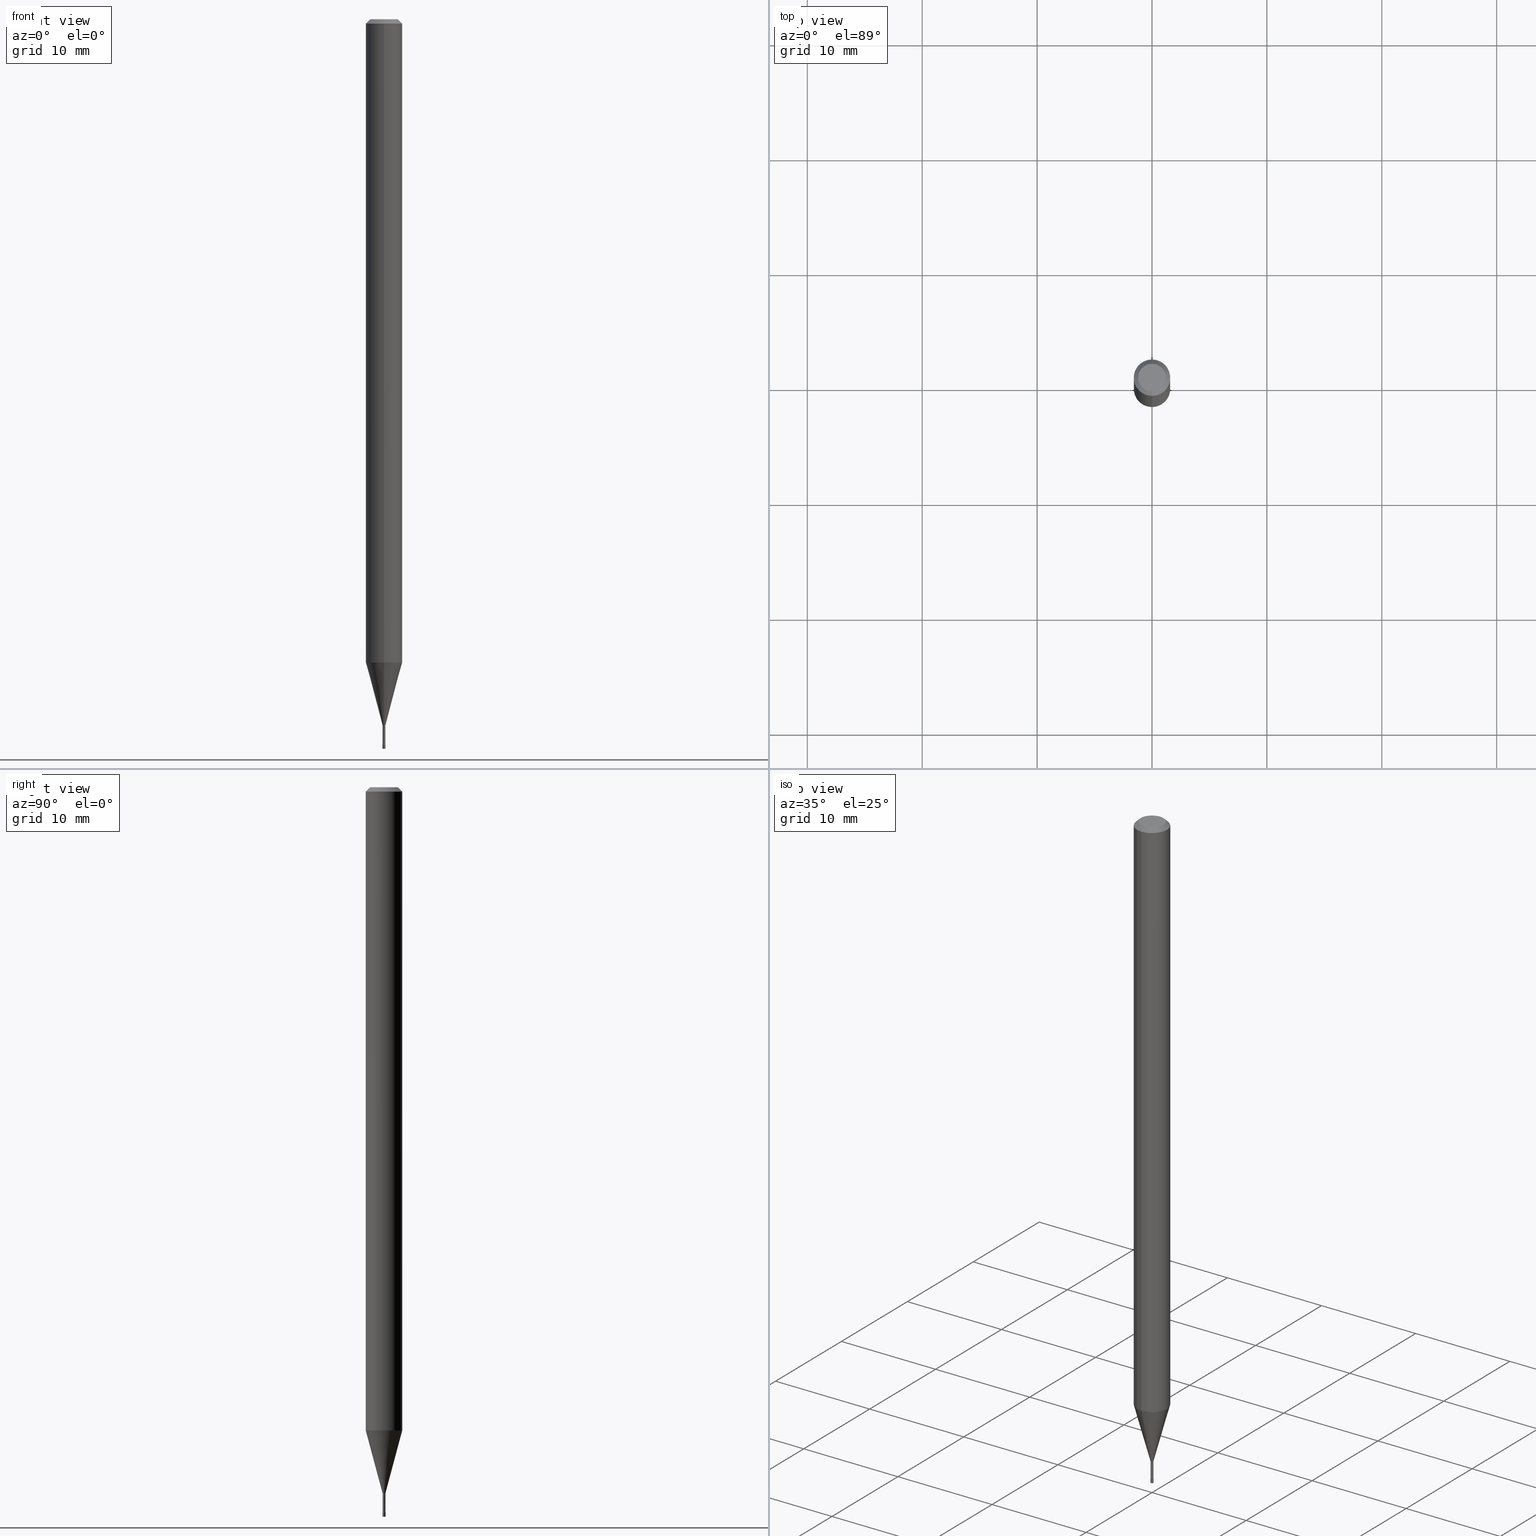
[diagram: canonical four-view strip — front | top / right | iso, engineering-drawing reading convention]
A machine part, canonical four-view strip (front | top / right | iso — engineering-drawing reading convention). The complete STEP part file that produces these views, byte-faithful:
ISO-10303-21;
HEADER;
FILE_DESCRIPTION (( 'STEP AP203' ),
    '1' );
FILE_NAME ('03562.STEP',
    '2024-03-08T21:50:03',
    ( '' ),
    ( '' ),
    'SwSTEP 2.0',
    'SolidWorks 2023',
    '' );
FILE_SCHEMA (( 'CONFIG_CONTROL_DESIGN' ));
ENDSEC;

DATA;
#1 = ORIENTED_EDGE ( 'NONE', *, *, #5, .T. ) ;
#2 = CIRCLE ( 'NONE', #202, 0.004700000000000001052 ) ;
#3 = CALENDAR_DATE ( 2024, 8, 3 ) ;
#4 = ORIENTED_EDGE ( 'NONE', *, *, #455, .T. ) ;
#5 = EDGE_CURVE ( 'NONE', #251, #259, #195, .T. ) ;
#6 = DIRECTION ( 'NONE',  ( -6.982962677686265922E-15, -1.000000000000000000, 3.490454887587355751E-15 ) ) ;
#7 = ORIENTED_EDGE ( 'NONE', *, *, #209, .T. ) ;
#8 = CARTESIAN_POINT ( 'NONE',  ( -3.281992458506474507E-17, -0.004700000000008664261, -2.482015037688680259 ) ) ;
#9 = EDGE_LOOP ( 'NONE', ( #174, #160, #13, #383 ) ) ;
#10 = DIRECTION ( 'NONE',  ( -6.982962677686265922E-15, -1.000000000000000000, 3.490454887587355751E-15 ) ) ;
#11 = AXIS2_PLACEMENT_3D ( 'NONE', #363, #51, #6 ) ;
#12 = PRODUCT_DEFINITION_FORMATION_WITH_SPECIFIED_SOURCE ( 'ANY', '', #357, .NOT_KNOWN. ) ;
#13 = ORIENTED_EDGE ( 'NONE', *, *, #477, .F. ) ;
#14 = CARTESIAN_POINT ( 'NONE',  ( 5.915102992694962294E-29, -8.440242791501723298E-15, -2.418092501787273196 ) ) ;
#15 = ORIENTED_EDGE ( 'NONE', *, *, #395, .F. ) ;
#16 = ADVANCED_FACE ( 'NONE', ( #483 ), #109, .F. ) ;
#17 = CARTESIAN_POINT ( 'NONE',  ( 6.076989983370064174E-29, -8.676331127025216680E-15, -2.484999999999999876 ) ) ;
#18 = VERTEX_POINT ( 'NONE', #283 ) ;
#19 = FACE_OUTER_BOUND ( 'NONE', #417, .T. ) ;
#20 = CIRCLE ( 'NONE', #146, 0.004700000000000001052 ) ;
#21 = ORIENTED_EDGE ( 'NONE', *, *, #266, .T. ) ;
#22 = CIRCLE ( 'NONE', #123, 0.06250000000000000000 ) ;
#23 = ORIENTED_EDGE ( 'NONE', *, *, #254, .F. ) ;
#24 = CARTESIAN_POINT ( 'NONE',  ( -1.375643647503587186E-16, -0.01970000000000866197, -2.482015037688680259 ) ) ;
#25 = VERTEX_POINT ( 'NONE', #8 ) ;
#26 = ORIENTED_EDGE ( 'NONE', *, *, #98, .F. ) ;
#27 = FACE_OUTER_BOUND ( 'NONE', #227, .T. ) ;
#28 = DIRECTION ( 'NONE',  ( -6.982962677686265133E-15, -1.000000000000000000, 0.000000000000000000 ) ) ;
#29 = ADVANCED_FACE ( 'NONE', ( #488 ), #293, .F. ) ;
#30 = CARTESIAN_POINT ( 'NONE',  ( -3.638900483451289349E-17, -0.005211112605672425790, -2.418092501787273196 ) ) ;
#31 = VECTOR ( 'NONE', #286, 39.37007874015748143 ) ;
#32 = EDGE_CURVE ( 'NONE', #292, #67, #332, .T. ) ;
#33 = CARTESIAN_POINT ( 'NONE',  ( 6.072671037490854444E-29, -8.661640674327993008E-15, -2.482015037688680259 ) ) ;
#34 = AXIS2_PLACEMENT_3D ( 'NONE', #17, #172, #406 ) ;
#35 = CIRCLE ( 'NONE', #288, 0.004999999999999997502 ) ;
#36 = APPROVAL_DATE_TIME ( #343, #117 ) ;
#37 = CARTESIAN_POINT ( 'NONE',  ( 3.702718207188347012E-17, 0.005211112605655546064, -2.418092501787273196 ) ) ;
#38 = DIRECTION ( 'NONE',  ( -6.982962677686265922E-15, -1.000000000000000000, 0.000000000000000000 ) ) ;
#39 = ADVANCED_FACE ( 'NONE', ( #170 ), #331, .F. ) ;
#40 = LINE ( 'NONE', #516, #492 ) ;
#41 = VECTOR ( 'NONE', #215, 39.37007874015748143 ) ;
#42 = CARTESIAN_POINT ( 'NONE',  ( 3.669278359899158842E-31, -5.235682331381043783E-17, -0.01500000000000003067 ) ) ;
#43 = VERTEX_POINT ( 'NONE', #161 ) ;
#44 = FACE_OUTER_BOUND ( 'NONE', #509, .T. ) ;
#45 = DIRECTION ( 'NONE',  ( 2.446185573266101259E-29, -3.490454887587355356E-15, -1.000000000000000000 ) ) ;
#46 = CARTESIAN_POINT ( 'NONE',  ( 0.004999999999999997502, -8.711245940413648329E-15, -2.484999999999999876 ) ) ;
#47 = EDGE_CURVE ( 'NONE', #294, #67, #413, .T. ) ;
#48 = APPLICATION_PROTOCOL_DEFINITION ( 'international standard', 'config_control_design', 1994, #54 ) ;
#49 = ORIENTED_EDGE ( 'NONE', *, *, #277, .T. ) ;
#50 = VECTOR ( 'NONE', #113, 39.37007874015748143 ) ;
#51 = DIRECTION ( 'NONE',  ( -2.446185573266101259E-29, 3.490454887587355356E-15, 1.000000000000000000 ) ) ;
#52 = ORIENTED_EDGE ( 'NONE', *, *, #484, .T. ) ;
#53 = CARTESIAN_POINT ( 'NONE',  ( 3.316907271900976096E-16, 0.04749999999999999362, -1.802779408416588912E-16 ) ) ;
#54 = APPLICATION_CONTEXT ( 'configuration controlled 3d designs of mechanical parts and assemblies' ) ;
#55 = ORIENTED_EDGE ( 'NONE', *, *, #426, .T. ) ;
#56 = DIRECTION ( 'NONE',  ( 1.000000000000000000, -6.982962677686266711E-15, 4.876176775795936914E-29 ) ) ;
#57 = ORIENTED_EDGE ( 'NONE', *, *, #273, .F. ) ;
#58 = EDGE_CURVE ( 'NONE', #259, #124, #101, .T. ) ;
#59 = AXIS2_PLACEMENT_3D ( 'NONE', #53, #125, #252 ) ;
#60 = AXIS2_PLACEMENT_3D ( 'NONE', #305, #466, #107 ) ;
#61 = DIRECTION ( 'NONE',  ( 7.105427357601001859E-15, 1.000000000000000000, 0.000000000000000000 ) ) ;
#62 = ORIENTED_EDGE ( 'NONE', *, *, #465, .T. ) ;
#63 = ORIENTED_EDGE ( 'NONE', *, *, #32, .T. ) ;
#64 = PRODUCT_RELATED_PRODUCT_CATEGORY ( 'detail', '', ( #357 ) ) ;
#65 = COORDINATED_UNIVERSAL_TIME_OFFSET ( 5, 0, .BEHIND. ) ;
#66 = CARTESIAN_POINT ( 'NONE',  ( 6.071469377823568273E-29, -8.663361519365767022E-15, -2.482015037688680259 ) ) ;
#67 = VERTEX_POINT ( 'NONE', #409 ) ;
#68 = DIRECTION ( 'NONE',  ( -6.982962677686265922E-15, -1.000000000000000000, 3.483106191921935554E-15 ) ) ;
#69 = AXIS2_PLACEMENT_3D ( 'NONE', #382, #115, #68 ) ;
#70 = FACE_OUTER_BOUND ( 'NONE', #350, .T. ) ;
#71 = CARTESIAN_POINT ( 'NONE',  ( 3.491481338849245302E-17, 0.004999999999991268373, -2.500000000000000000 ) ) ;
#72 = ORIENTED_EDGE ( 'NONE', *, *, #238, .T. ) ;
#73 = CARTESIAN_POINT ( 'NONE',  ( 2.405581959610001541E-16, 0.005211112605655546064, -2.418092501787273196 ) ) ;
#74 = PLANE ( 'NONE',  #407 ) ;
#75 = ADVANCED_FACE ( 'NONE', ( #255 ), #444, .T. ) ;
#76 = DATE_TIME_ROLE ( 'creation_date' ) ;
#77 = DIRECTION ( 'NONE',  ( -2.446185573266101259E-29, 3.490454887587355356E-15, 1.000000000000000000 ) ) ;
#78 = AXIS2_PLACEMENT_3D ( 'NONE', #471, #233, #267 ) ;
#79 = CIRCLE ( 'NONE', #474, 0.004699999999999992378 ) ;
#80 = CARTESIAN_POINT ( 'NONE',  ( -4.364351673553912750E-16, -0.06250000000000005551, -0.01499999999999981209 ) ) ;
#81 = ADVANCED_FACE ( 'NONE', ( #208 ), #256, .F. ) ;
#82 = DIRECTION ( 'NONE',  ( -2.446185573266101259E-29, 3.490454887587355356E-15, 1.000000000000000000 ) ) ;
#83 = EDGE_CURVE ( 'NONE', #182, #464, #411, .T. ) ;
#84 = TOROIDAL_SURFACE ( 'NONE', #91, 0.01970000000000000223, 0.01500000000000000291 ) ;
#85 = SECURITY_CLASSIFICATION ( '', '', #224 ) ;
#86 = CC_DESIGN_PERSON_AND_ORGANIZATION_ASSIGNMENT ( #187, #148, ( #85 ) ) ;
#87 = DIRECTION ( 'NONE',  ( -2.446185573266101259E-29, 3.490454887587355356E-15, 1.000000000000000000 ) ) ;
#88 = ADVANCED_FACE ( 'NONE', ( #446 ), #265, .F. ) ;
#89 = APPROVAL_DATE_TIME ( #284, #429 ) ;
#90 = ORIENTED_EDGE ( 'NONE', *, *, #387, .F. ) ;
#91 = AXIS2_PLACEMENT_3D ( 'NONE', #33, #374, #223 ) ;
#92 = CC_DESIGN_SECURITY_CLASSIFICATION ( #85, ( #12 ) ) ;
#93 = DIRECTION ( 'NONE',  ( -6.982962677686265922E-15, -1.000000000000000000, 0.000000000000000000 ) ) ;
#94 = EDGE_CURVE ( 'NONE', #427, #244, #127, .T. ) ;
#95 = EDGE_CURVE ( 'NONE', #419, #163, #178, .T. ) ;
#96 = CARTESIAN_POINT ( 'NONE',  ( -3.491481338837049389E-17, -0.005000000000008665915, -2.484999999999999876 ) ) ;
#97 = ORIENTED_EDGE ( 'NONE', *, *, #238, .F. ) ;
#98 = EDGE_CURVE ( 'NONE', #486, #292, #480, .T. ) ;
#99 = CARTESIAN_POINT ( 'NONE',  ( 3.491481338849208940E-17, 0.004999999999991321283, -2.484999999999999876 ) ) ;
#100 = ORIENTED_EDGE ( 'NONE', *, *, #32, .F. ) ;
#101 = CIRCLE ( 'NONE', #298, 0.004999999999999995767 ) ;
#102 = CARTESIAN_POINT ( 'NONE',  ( 0.004999999999999997502, -3.491481338843131630E-17, 2.438088387897967108E-31 ) ) ;
#103 = AXIS2_PLACEMENT_3D ( 'NONE', #14, #295, #93 ) ;
#104 = LINE ( 'NONE', #181, #50 ) ;
#105 = DIRECTION ( 'NONE',  ( 2.446185573266101259E-29, -3.490454887587355356E-15, -1.000000000000000000 ) ) ;
#106 = CARTESIAN_POINT ( 'NONE',  ( 6.076989983370064174E-29, -8.676331127025216680E-15, -2.484999999999999876 ) ) ;
#107 = DIRECTION ( 'NONE',  ( 7.105427357601000281E-15, 1.000000000000000000, 0.000000000000000000 ) ) ;
#108 = CARTESIAN_POINT ( 'NONE',  ( 0.000000000000000000, 0.000000000000000000, 0.000000000000000000 ) ) ;
#109 = TOROIDAL_SURFACE ( 'NONE', #397, 0.01969999999999999182, 0.01500000000000001506 ) ;
#110 = ORIENTED_EDGE ( 'NONE', *, *, #401, .F. ) ;
#111 = CC_DESIGN_APPROVAL ( #368, ( #12 ) ) ;
#112 = PERSON_AND_ORGANIZATION_ROLE ( 'creator' ) ;
#113 = DIRECTION ( 'NONE',  ( -4.851104656540964275E-15, -0.7071067811865500152, -0.7071067811865450192 ) ) ;
#114 = DATE_AND_TIME ( #271, #247 ) ;
#115 = DIRECTION ( 'NONE',  ( -2.446185573266101259E-29, 3.490454887587355356E-15, 1.000000000000000000 ) ) ;
#116 = CARTESIAN_POINT ( 'NONE',  ( 3.669278359899158842E-31, -5.235682331381043783E-17, -0.01500000000000003067 ) ) ;
#117 = APPROVAL ( #338, 'UNSPECIFIED' ) ;
#118 = EDGE_CURVE ( 'NONE', #464, #244, #157, .T. ) ;
#119 = LINE ( 'NONE', #236, #424 ) ;
#120 = CARTESIAN_POINT ( 'NONE',  ( 6.113672015462842613E-29, -8.728703347107864943E-15, -2.500000000000000000 ) ) ;
#121 = CARTESIAN_POINT ( 'NONE',  ( 3.669278359899158842E-31, -5.235682331381043783E-17, -0.01500000000000003067 ) ) ;
#122 = EDGE_CURVE ( 'NONE', #18, #43, #330, .T. ) ;
#123 = AXIS2_PLACEMENT_3D ( 'NONE', #121, #153, #396 ) ;
#124 = VERTEX_POINT ( 'NONE', #96 ) ;
#125 = DIRECTION ( 'NONE',  ( 2.446185573266101259E-29, -3.490454887587354962E-15, -1.000000000000000000 ) ) ;
#126 = CALENDAR_DATE ( 2024, 8, 3 ) ;
#127 = LINE ( 'NONE', #217, #41 ) ;
#128 = AXIS2_PLACEMENT_3D ( 'NONE', #106, #463, #261 ) ;
#129 = APPROVAL_PERSON_ORGANIZATION ( #326, #429, #404 ) ;
#130 = DIRECTION ( 'NONE',  ( -2.446185573266101259E-29, 3.490454887587355356E-15, 1.000000000000000000 ) ) ;
#131 = ORIENTED_EDGE ( 'NONE', *, *, #487, .F. ) ;
#132 = DIRECTION ( 'NONE',  ( -2.446185573266101259E-29, 3.490454887587355356E-15, 1.000000000000000000 ) ) ;
#133 = ORIENTED_EDGE ( 'NONE', *, *, #303, .F. ) ;
#134 = CARTESIAN_POINT ( 'NONE',  ( 0.000000000000000000, 0.000000000000000000, 0.000000000000000000 ) ) ;
#135 = EDGE_LOOP ( 'NONE', ( #334, #166, #26, #218 ) ) ;
#136 = CARTESIAN_POINT ( 'NONE',  ( -0.004999999999999997502, -8.666990100278535771E-15, -2.484999999999999876 ) ) ;
#137 = AXIS2_PLACEMENT_3D ( 'NONE', #450, #130, #211 ) ;
#138 = ORIENTED_EDGE ( 'NONE', *, *, #266, .F. ) ;
#139 = LINE ( 'NONE', #428, #517 ) ;
#140 = CARTESIAN_POINT ( 'NONE',  ( 3.840629472727447874E-16, 0.04749999999999999362, -1.947592745229184119E-16 ) ) ;
#141 = ORIENTED_EDGE ( 'NONE', *, *, #58, .F. ) ;
#142 = PERSON_AND_ORGANIZATION ( #297, #235 ) ;
#143 = FACE_OUTER_BOUND ( 'NONE', #229, .T. ) ;
#144 = ORIENTED_EDGE ( 'NONE', *, *, #207, .T. ) ;
#145 = DIRECTION ( 'NONE',  ( -1.000000000000000000, 6.982962677686265922E-15, -4.883557194083112340E-29 ) ) ;
#146 = AXIS2_PLACEMENT_3D ( 'NONE', #438, #356, #242 ) ;
#147 = CONICAL_SURFACE ( 'NONE', #459, 0.005211112605663986361, 0.2617993877991502960 ) ;
#148 = PERSON_AND_ORGANIZATION_ROLE ( 'classification_officer' ) ;
#149 = DIRECTION ( 'NONE',  ( -6.982962677686265922E-15, -1.000000000000000000, 3.490454887587355356E-15 ) ) ;
#150 = PERSON_AND_ORGANIZATION ( #297, #235 ) ;
#151 = CARTESIAN_POINT ( 'NONE',  ( 0.000000000000000000, 0.000000000000000000, 0.000000000000000000 ) ) ;
#152 = AXIS2_PLACEMENT_3D ( 'NONE', #134, #205, #56 ) ;
#153 = DIRECTION ( 'NONE',  ( -2.446185573266101259E-29, 3.490454887587355356E-15, 1.000000000000000000 ) ) ;
#154 = CC_DESIGN_PERSON_AND_ORGANIZATION_ASSIGNMENT ( #158, #243, ( #520 ) ) ;
#155 = DIRECTION ( 'NONE',  ( -2.445468806185136597E-29, 3.491481338843145583E-15, 1.000000000000000000 ) ) ;
#156 =( NAMED_UNIT ( * ) PLANE_ANGLE_UNIT ( ) SI_UNIT ( $, .RADIAN. ) );
#157 = CIRCLE ( 'NONE', #34, 0.004999999999999997502 ) ;
#158 = PERSON_AND_ORGANIZATION ( #297, #235 ) ;
#159 = ORIENTED_EDGE ( 'NONE', *, *, #345, .F. ) ;
#160 = ORIENTED_EDGE ( 'NONE', *, *, #395, .T. ) ;
#161 = CARTESIAN_POINT ( 'NONE',  ( -3.281992458506615023E-17, -0.004700000000008446553, -2.421974787463811118 ) ) ;
#162 = CC_DESIGN_PERSON_AND_ORGANIZATION_ASSIGNMENT ( #346, #112, ( #12 ) ) ;
#163 = VERTEX_POINT ( 'NONE', #290 ) ;
#164 = DIRECTION ( 'NONE',  ( -2.445468806185136877E-29, 3.491481338843145188E-15, 1.000000000000000000 ) ) ;
#165 = EDGE_CURVE ( 'NONE', #419, #292, #221, .T. ) ;
#166 = ORIENTED_EDGE ( 'NONE', *, *, #165, .T. ) ;
#167 = AXIS2_PLACEMENT_3D ( 'NONE', #24, #430, #372 ) ;
#168 = DIRECTION ( 'NONE',  ( -2.446185573266101259E-29, 3.490454887587354962E-15, 1.000000000000000000 ) ) ;
#169 = EDGE_LOOP ( 'NONE', ( #15, #268, #52, #405 ) ) ;
#170 = FACE_OUTER_BOUND ( 'NONE', #493, .T. ) ;
#171 = ORIENTED_EDGE ( 'NONE', *, *, #83, .T. ) ;
#172 = DIRECTION ( 'NONE',  ( -2.445468806185136597E-29, 3.491481338843145583E-15, 1.000000000000000000 ) ) ;
#173 = MANIFOLD_SOLID_BREP ( 'Body-Move/Copy2[1]', #352 ) ;
#174 = ORIENTED_EDGE ( 'NONE', *, *, #254, .T. ) ;
#175 = DATE_AND_TIME ( #371, #376 ) ;
#176 = CIRCLE ( 'NONE', #375, 0.004999999999999997502 ) ;
#177 = CARTESIAN_POINT ( 'NONE',  ( 0.000000000000000000, 0.000000000000000000, 0.000000000000000000 ) ) ;
#178 = CIRCLE ( 'NONE', #103, 0.005211112605663986361 ) ;
#179 = LOCAL_TIME ( 16, 50, 3.000000000000000000, #201 ) ;
#180 = DIRECTION ( 'NONE',  ( 1.000000000000000000, -6.982962677686336130E-15, 0.000000000000000000 ) ) ;
#181 = CARTESIAN_POINT ( 'NONE',  ( -4.287811248607203282E-16, -0.06250000000000005551, -0.01499999999999981209 ) ) ;
#182 = VERTEX_POINT ( 'NONE', #315 ) ;
#183 = CARTESIAN_POINT ( 'NONE',  ( -3.773273898774340269E-16, -0.04749999999999999362, 1.368339397978803046E-16 ) ) ;
#184 = MANIFOLD_SOLID_BREP ( 'Body-Move/Copy2[2]', #278 ) ;
#185 = CARTESIAN_POINT ( 'NONE',  ( 6.113672015462842613E-29, -8.728703347107864943E-15, -2.500000000000000000 ) ) ;
#186 = ORIENTED_EDGE ( 'NONE', *, *, #122, .T. ) ;
#187 = PERSON_AND_ORGANIZATION ( #297, #235 ) ;
#188 = DIRECTION ( 'NONE',  ( 2.438088387897960049E-29, -3.491481338843145188E-15, -1.000000000000000000 ) ) ;
#189 = CONICAL_SURFACE ( 'NONE', #339, 0.005211112605663986361, 0.2617993877991502960 ) ;
#190 = ORIENTED_EDGE ( 'NONE', *, *, #455, .F. ) ;
#191 = APPROVAL_PERSON_ORGANIZATION ( #150, #117, #232 ) ;
#192 = DIRECTION ( 'NONE',  ( -2.446185573266101259E-29, 3.490454887587354962E-15, 1.000000000000000000 ) ) ;
#193 = ADVANCED_FACE ( 'NONE', ( #336 ), #389, .T. ) ;
#194 = FACE_OUTER_BOUND ( 'NONE', #498, .T. ) ;
#195 = CIRCLE ( 'NONE', #263, 0.01500000000000000291 ) ;
#196 = ADVANCED_FACE ( 'NONE', ( #143 ), #74, .T. ) ;
#197 = CIRCLE ( 'NONE', #458, 0.004999999999999997502 ) ;
#198 = DIRECTION ( 'NONE',  ( -2.446185573266101259E-29, 3.490454887587354962E-15, 1.000000000000000000 ) ) ;
#199 = DIRECTION ( 'NONE',  ( -2.446185573266101259E-29, 3.490454887587355356E-15, 1.000000000000000000 ) ) ;
#200 = CARTESIAN_POINT ( 'NONE',  ( -4.364351673553377310E-16, -0.06250000000000770217, -2.204287463322519347 ) ) ;
#201 = COORDINATED_UNIVERSAL_TIME_OFFSET ( 5, 0, .BEHIND. ) ;
#202 = AXIS2_PLACEMENT_3D ( 'NONE', #66, #425, #270 ) ;
#203 = ORIENTED_EDGE ( 'NONE', *, *, #394, .F. ) ;
#204 = CC_DESIGN_APPROVAL ( #429, ( #520 ) ) ;
#205 = DIRECTION ( 'NONE',  ( -2.445468806185136597E-29, 3.491481338843145583E-15, 1.000000000000000000 ) ) ;
#206 = ORIENTED_EDGE ( 'NONE', *, *, #314, .F. ) ;
#207 = EDGE_CURVE ( 'NONE', #427, #182, #197, .T. ) ;
#208 = FACE_OUTER_BOUND ( 'NONE', #212, .T. ) ;
#209 = EDGE_CURVE ( 'NONE', #443, #362, #104, .T. ) ;
#210 = ADVANCED_BREP_SHAPE_REPRESENTATION ( '03562', ( #173, #184, #390 ), #414 ) ;
#211 = DIRECTION ( 'NONE',  ( -6.982962677686265922E-15, -1.000000000000000000, 0.000000000000000000 ) ) ;
#212 = EDGE_LOOP ( 'NONE', ( #451, #110, #366, #380 ) ) ;
#213 = AXIS2_PLACEMENT_3D ( 'NONE', #116, #105, #431 ) ;
#214 = CIRCLE ( 'NONE', #513, 0.04749999999999999362 ) ;
#215 = DIRECTION ( 'NONE',  ( -2.445468806185136877E-29, 3.491481338843145188E-15, 1.000000000000000000 ) ) ;
#216 = ADVANCED_FACE ( 'NONE', ( #499 ), #307, .T. ) ;
#217 = CARTESIAN_POINT ( 'NONE',  ( -0.004999999999999997502, 3.552713678800499154E-17, -2.459467545127451822E-31 ) ) ;
#218 = ORIENTED_EDGE ( 'NONE', *, *, #277, .F. ) ;
#219 = ORIENTED_EDGE ( 'NONE', *, *, #58, .T. ) ;
#220 = CC_DESIGN_DATE_AND_TIME_ASSIGNMENT ( #175, #269, ( #85 ) ) ;
#221 = LINE ( 'NONE', #37, #353 ) ;
#222 = DIRECTION ( 'NONE',  ( 1.000000000000000000, -7.105427357601001070E-15, 4.926302938139633134E-29 ) ) ;
#223 = DIRECTION ( 'NONE',  ( -6.982962677686265922E-15, -1.000000000000000000, 3.490454887587355751E-15 ) ) ;
#224 = SECURITY_CLASSIFICATION_LEVEL ( 'unclassified' ) ;
#225 = CIRCLE ( 'NONE', #435, 0.06250000000000000000 ) ;
#226 = DIRECTION ( 'NONE',  ( -2.446185573266101259E-29, 3.490454887587355356E-15, 1.000000000000000000 ) ) ;
#227 = EDGE_LOOP ( 'NONE', ( #304, #131, #421, #445 ) ) ;
#228 = CYLINDRICAL_SURFACE ( 'NONE', #469, 0.06250000000000000000 ) ;
#229 = EDGE_LOOP ( 'NONE', ( #248, #503 ) ) ;
#230 = CARTESIAN_POINT ( 'NONE',  ( 5.915102992694962294E-29, -8.440242791501723298E-15, -2.418092501787273196 ) ) ;
#231 = CARTESIAN_POINT ( 'NONE',  ( 5.392096192110878266E-29, -7.693965950001622494E-15, -2.204287463322519791 ) ) ;
#232 = APPROVAL_ROLE ( '' ) ;
#233 = DIRECTION ( 'NONE',  ( -2.446185573266101259E-29, 3.490454887587355356E-15, 1.000000000000000000 ) ) ;
#234 = VECTOR ( 'NONE', #514, 39.37007874015748143 ) ;
#235 = ORGANIZATION ( 'UNSPECIFIED', 'UNSPECIFIED', '' ) ;
#236 = CARTESIAN_POINT ( 'NONE',  ( -4.364351673553916201E-16, -0.06250000000000000000, 2.181534304742097098E-16 ) ) ;
#237 = CARTESIAN_POINT ( 'NONE',  ( 7.084805906549903778E-46, -1.010928838530713830E-31, -2.896266736251904134E-17 ) ) ;
#238 = EDGE_CURVE ( 'NONE', #292, #486, #225, .T. ) ;
#239 = CIRCLE ( 'NONE', #167, 0.01500000000000000291 ) ;
#240 =( CONVERSION_BASED_UNIT ( 'INCH', #320 ) LENGTH_UNIT ( ) NAMED_UNIT ( #475 ) );
#241 = ADVANCED_FACE ( 'NONE', ( #344 ), #341, .T. ) ;
#242 = DIRECTION ( 'NONE',  ( -6.982962677686265922E-15, -1.000000000000000000, 0.000000000000000000 ) ) ;
#243 = PERSON_AND_ORGANIZATION_ROLE ( 'creator' ) ;
#244 = VERTEX_POINT ( 'NONE', #136 ) ;
#245 = DIRECTION ( 'NONE',  ( -6.982962677686265922E-15, -1.000000000000000000, 4.370956789862821150E-15 ) ) ;
#246 = CIRCLE ( 'NONE', #501, 0.004999999999999995767 ) ;
#247 = LOCAL_TIME ( 16, 50, 3.000000000000000000, #313 ) ;
#248 = ORIENTED_EDGE ( 'NONE', *, *, #465, .F. ) ;
#249 = AXIS2_PLACEMENT_3D ( 'NONE', #478, #87, #358 ) ;
#250 = CARTESIAN_POINT ( 'NONE',  ( 4.440892098500625669E-16, 0.06250000000000000000, -2.181534304742097098E-16 ) ) ;
#251 = VERTEX_POINT ( 'NONE', #460 ) ;
#252 = DIRECTION ( 'NONE',  ( 6.982962677686265922E-15, 1.000000000000000000, -3.490454887587354962E-15 ) ) ;
#253 = ORIENTED_EDGE ( 'NONE', *, *, #273, .T. ) ;
#254 = EDGE_CURVE ( 'NONE', #25, #251, #2, .T. ) ;
#255 = FACE_OUTER_BOUND ( 'NONE', #453, .T. ) ;
#256 = TOROIDAL_SURFACE ( 'NONE', #11, 0.01969999999999999182, 0.01500000000000001506 ) ;
#257 = CC_DESIGN_APPROVAL ( #117, ( #85 ) ) ;
#258 = CARTESIAN_POINT ( 'NONE',  ( 5.392096192110878266E-29, -7.693965950001622494E-15, -2.204287463322519791 ) ) ;
#259 = VERTEX_POINT ( 'NONE', #348 ) ;
#260 = DIRECTION ( 'NONE',  ( -6.982962677686265922E-15, -1.000000000000000000, 3.490454887587355356E-15 ) ) ;
#261 = DIRECTION ( 'NONE',  ( 1.000000000000000000, -6.982962677686265922E-15, 4.876176775795935793E-29 ) ) ;
#262 = ORIENTED_EDGE ( 'NONE', *, *, #95, .T. ) ;
#263 = AXIS2_PLACEMENT_3D ( 'NONE', #370, #222, #61 ) ;
#264 = APPROVAL_DATE_TIME ( #114, #368 ) ;
#265 = TOROIDAL_SURFACE ( 'NONE', #512, 0.01970000000000000223, 0.01500000000000000291 ) ;
#266 = EDGE_CURVE ( 'NONE', #443, #294, #323, .T. ) ;
#267 = DIRECTION ( 'NONE',  ( -6.982962677686266711E-15, -1.000000000000000000, 3.490454887587355751E-15 ) ) ;
#268 = ORIENTED_EDGE ( 'NONE', *, *, #387, .T. ) ;
#269 = DATE_TIME_ROLE ( 'classification_date' ) ;
#270 = DIRECTION ( 'NONE',  ( -6.982962677686265922E-15, -1.000000000000000000, 0.000000000000000000 ) ) ;
#271 = CALENDAR_DATE ( 2024, 8, 3 ) ;
#272 = DIRECTION ( 'NONE',  ( -2.445468806185136597E-29, 3.491481338843145583E-15, 1.000000000000000000 ) ) ;
#273 = EDGE_CURVE ( 'NONE', #25, #124, #239, .T. ) ;
#274 = APPLICATION_CONTEXT ( 'configuration controlled 3d designs of mechanical parts and assemblies' ) ;
#275 = DIRECTION ( 'NONE',  ( -6.982962677686265922E-15, -1.000000000000000000, 0.000000000000000000 ) ) ;
#276 = DIRECTION ( 'NONE',  ( -2.446185573266101259E-29, 3.490454887587355356E-15, 1.000000000000000000 ) ) ;
#277 = EDGE_CURVE ( 'NONE', #163, #486, #418, .T. ) ;
#278 = CLOSED_SHELL ( 'NONE', ( #16, #216, #88, #384, #518, #449, #481, #291, #402, #39, #29, #392, #241, #81 ) ) ;
#279 = CIRCLE ( 'NONE', #337, 0.01500000000000001506 ) ;
#280 =( NAMED_UNIT ( * ) SI_UNIT ( $, .STERADIAN. ) SOLID_ANGLE_UNIT ( ) );
#281 = DIRECTION ( 'NONE',  ( 1.000000000000000000, 0.000000000000000000, 0.000000000000000000 ) ) ;
#282 = EDGE_LOOP ( 'NONE', ( #206, #141 ) ) ;
#283 = CARTESIAN_POINT ( 'NONE',  ( 3.339550858078539687E-17, 0.004699999999991539071, -2.421974787463811118 ) ) ;
#284 = DATE_AND_TIME ( #126, #349 ) ;
#285 = ORIENTED_EDGE ( 'NONE', *, *, #394, .T. ) ;
#286 = DIRECTION ( 'NONE',  ( 4.937700262164548042E-15, 0.7071067811865451302, -0.7071067811865499042 ) ) ;
#287 = CIRCLE ( 'NONE', #60, 0.01500000000000001506 ) ;
#288 = AXIS2_PLACEMENT_3D ( 'NONE', #120, #437, #319 ) ;
#289 = ORIENTED_EDGE ( 'NONE', *, *, #5, .F. ) ;
#290 = CARTESIAN_POINT ( 'NONE',  ( -3.638900483451289349E-17, -0.005211112605672425790, -2.418092501787273196 ) ) ;
#291 = ADVANCED_FACE ( 'NONE', ( #19 ), #228, .T. ) ;
#292 = VERTEX_POINT ( 'NONE', #502 ) ;
#293 = PLANE ( 'NONE',  #468 ) ;
#294 = VERTEX_POINT ( 'NONE', #140 ) ;
#295 = DIRECTION ( 'NONE',  ( -2.446185573266101259E-29, 3.490454887587355356E-15, 1.000000000000000000 ) ) ;
#296 = ORIENTED_EDGE ( 'NONE', *, *, #496, .F. ) ;
#297 = PERSON ( 'UNSPECIFIED', 'UNSPECIFIED', 'UNSPECIFIED', ('UNSPECIFIED'), ('UNSPECIFIED'), ('UNSPECIFIED') ) ;
#298 = AXIS2_PLACEMENT_3D ( 'NONE', #497, #132, #452 ) ;
#299 = DIRECTION ( 'NONE',  ( -6.982962677686265922E-15, -1.000000000000000000, 4.370956789862821150E-15 ) ) ;
#300 = ORIENTED_EDGE ( 'NONE', *, *, #47, .F. ) ;
#301 = APPROVAL_ROLE ( '' ) ;
#302 = CARTESIAN_POINT ( 'NONE',  ( 6.078771149566261160E-29, -8.673780395654578865E-15, -2.484999999999999876 ) ) ;
#303 = EDGE_CURVE ( 'NONE', #67, #362, #447, .T. ) ;
#304 = ORIENTED_EDGE ( 'NONE', *, *, #209, .F. ) ;
#305 = CARTESIAN_POINT ( 'NONE',  ( 1.399769189447989170E-16, 0.01969999999999154025, -2.421974787463811118 ) ) ;
#306 = COORDINATED_UNIVERSAL_TIME_OFFSET ( 5, 0, .BEHIND. ) ;
#307 = CYLINDRICAL_SURFACE ( 'NONE', #491, 0.004699999999999996715 ) ;
#308 = ORIENTED_EDGE ( 'NONE', *, *, #118, .F. ) ;
#309 = FACE_OUTER_BOUND ( 'NONE', #135, .T. ) ;
#310 = VECTOR ( 'NONE', #168, 39.37007874015748143 ) ;
#311 = CONICAL_SURFACE ( 'NONE', #473, 0.06250000000000000000, 0.7853981633974483900 ) ;
#312 = DIRECTION ( 'NONE',  ( -6.982962677686265133E-15, -1.000000000000000000, 0.000000000000000000 ) ) ;
#313 = COORDINATED_UNIVERSAL_TIME_OFFSET ( 5, 0, .BEHIND. ) ;
#314 = EDGE_CURVE ( 'NONE', #124, #259, #246, .T. ) ;
#315 = CARTESIAN_POINT ( 'NONE',  ( 0.004999999999999997502, -8.763618160496296592E-15, -2.500000000000000000 ) ) ;
#316 = CARTESIAN_POINT ( 'NONE',  ( 5.915102992694962294E-29, -8.440242791501723298E-15, -2.418092501787273196 ) ) ;
#317 = CC_DESIGN_DATE_AND_TIME_ASSIGNMENT ( #506, #76, ( #520 ) ) ;
#318 = AXIS2_PLACEMENT_3D ( 'NONE', #108, #77, #260 ) ;
#319 = DIRECTION ( 'NONE',  ( 1.000000000000000000, -6.982962677686336130E-15, 0.000000000000000000 ) ) ;
#320 = LENGTH_MEASURE_WITH_UNIT ( LENGTH_MEASURE( 0.02539999999999999897 ), #519 );
#321 = DIRECTION ( 'NONE',  ( 6.982962677686265922E-15, 1.000000000000000000, -3.483106191921935554E-15 ) ) ;
#322 = DIRECTION ( 'NONE',  ( 1.000000000000000000, -6.982962677686266711E-15, 4.876176775795936914E-29 ) ) ;
#323 = CIRCLE ( 'NONE', #78, 0.04749999999999999362 ) ;
#324 = MECHANICAL_CONTEXT ( 'NONE', #274, 'mechanical' ) ;
#325 = APPROVAL_PERSON_ORGANIZATION ( #142, #368, #301 ) ;
#326 = PERSON_AND_ORGANIZATION ( #297, #235 ) ;
#327 = DIRECTION ( 'NONE',  ( -2.446185573266101259E-29, 3.490454887587355356E-15, 1.000000000000000000 ) ) ;
#328 = EDGE_LOOP ( 'NONE', ( #504, #262, #49, #97 ) ) ;
#329 = DIRECTION ( 'NONE',  ( -6.982962677686265922E-15, -1.000000000000000000, 3.490454887587354962E-15 ) ) ;
#330 = CIRCLE ( 'NONE', #137, 0.004699999999999992378 ) ;
#331 = PLANE ( 'NONE',  #59 ) ;
#332 = LINE ( 'NONE', #250, #310 ) ;
#333 = ORIENTED_EDGE ( 'NONE', *, *, #487, .T. ) ;
#334 = ORIENTED_EDGE ( 'NONE', *, *, #401, .T. ) ;
#335 = FACE_OUTER_BOUND ( 'NONE', #342, .T. ) ;
#336 = FACE_OUTER_BOUND ( 'NONE', #360, .T. ) ;
#337 = AXIS2_PLACEMENT_3D ( 'NONE', #511, #145, #312 ) ;
#338 = APPROVAL_STATUS ( 'not_yet_approved' ) ;
#339 = AXIS2_PLACEMENT_3D ( 'NONE', #230, #385, #442 ) ;
#340 = DIRECTION ( 'NONE',  ( -2.446185573266101259E-29, 3.490454887587355356E-15, 1.000000000000000000 ) ) ;
#341 = CYLINDRICAL_SURFACE ( 'NONE', #318, 0.004699999999999996715 ) ;
#342 = EDGE_LOOP ( 'NONE', ( #138, #7, #4, #300 ) ) ;
#343 = DATE_AND_TIME ( #462, #399 ) ;
#344 = FACE_OUTER_BOUND ( 'NONE', #169, .T. ) ;
#345 = EDGE_CURVE ( 'NONE', #163, #43, #279, .T. ) ;
#346 = PERSON_AND_ORGANIZATION ( #297, #235 ) ;
#347 = AXIS2_PLACEMENT_3D ( 'NONE', #316, #505, #461 ) ;
#348 = CARTESIAN_POINT ( 'NONE',  ( 3.552713678806572767E-17, 0.004999999999991320415, -2.484999999999999876 ) ) ;
#349 = LOCAL_TIME ( 16, 50, 3.000000000000000000, #485 ) ;
#350 = EDGE_LOOP ( 'NONE', ( #289, #23, #253, #415 ) ) ;
#351 = PERSON_AND_ORGANIZATION_ROLE ( 'design_owner' ) ;
#352 = CLOSED_SHELL ( 'NONE', ( #454, #193, #75, #196 ) ) ;
#353 = VECTOR ( 'NONE', #508, 39.37007874015748143 ) ;
#354 = DIRECTION ( 'NONE',  ( -2.446185573266101259E-29, 3.490454887587354962E-15, 1.000000000000000000 ) ) ;
#355 = CARTESIAN_POINT ( 'NONE',  ( 5.915102992694962294E-29, -8.440242791501723298E-15, -2.418092501787273196 ) ) ;
#356 = DIRECTION ( 'NONE',  ( -2.446185573266101259E-29, 3.490454887587355356E-15, 1.000000000000000000 ) ) ;
#357 = PRODUCT ( '03562', '03562', '', ( #324 ) ) ;
#358 = DIRECTION ( 'NONE',  ( -6.982962677686265922E-15, -1.000000000000000000, 3.490454887587355356E-15 ) ) ;
#359 = APPROVAL_STATUS ( 'not_yet_approved' ) ;
#360 = EDGE_LOOP ( 'NONE', ( #410, #285 ) ) ;
#361 = CARTESIAN_POINT ( 'NONE',  ( 6.072671037490854444E-29, -8.661640674327993008E-15, -2.482015037688680259 ) ) ;
#362 = VERTEX_POINT ( 'NONE', #80 ) ;
#363 = CARTESIAN_POINT ( 'NONE',  ( 5.925844478450387108E-29, -8.452011261088390230E-15, -2.421974787463811118 ) ) ;
#364 = CC_DESIGN_PERSON_AND_ORGANIZATION_ASSIGNMENT ( #393, #351, ( #357 ) ) ;
#365 = CARTESIAN_POINT ( 'NONE',  ( 5.925844478450387108E-29, -8.452011261088390230E-15, -2.421974787463811118 ) ) ;
#366 = ORIENTED_EDGE ( 'NONE', *, *, #345, .T. ) ;
#367 = DIRECTION ( 'NONE',  ( -6.982962677686265922E-15, -1.000000000000000000, 3.490454887587355751E-15 ) ) ;
#368 = APPROVAL ( #515, 'UNSPECIFIED' ) ;
#369 = DIRECTION ( 'NONE',  ( -2.446185573266101259E-29, 3.490454887587354962E-15, 1.000000000000000000 ) ) ;
#370 = CARTESIAN_POINT ( 'NONE',  ( 1.399769189448004455E-16, 0.01969999999999134249, -2.482015037688680259 ) ) ;
#371 = CALENDAR_DATE ( 2024, 8, 3 ) ;
#372 = DIRECTION ( 'NONE',  ( -6.982962677686266711E-15, -1.000000000000000000, 0.000000000000000000 ) ) ;
#373 = EDGE_LOOP ( 'NONE', ( #90, #1, #219, #57 ) ) ;
#374 = DIRECTION ( 'NONE',  ( -2.446185573266101259E-29, 3.490454887587355356E-15, 1.000000000000000000 ) ) ;
#375 = AXIS2_PLACEMENT_3D ( 'NONE', #434, #381, #180 ) ;
#376 = LOCAL_TIME ( 16, 50, 3.000000000000000000, #65 ) ;
#377 = PERSON_AND_ORGANIZATION_ROLE ( 'design_supplier' ) ;
#378 = CARTESIAN_POINT ( 'NONE',  ( 0.000000000000000000, 0.000000000000000000, 0.000000000000000000 ) ) ;
#379 = CC_DESIGN_PERSON_AND_ORGANIZATION_ASSIGNMENT ( #432, #377, ( #12 ) ) ;
#380 = ORIENTED_EDGE ( 'NONE', *, *, #477, .T. ) ;
#381 = DIRECTION ( 'NONE',  ( -2.445468806185136597E-29, 3.491481338843145583E-15, 1.000000000000000000 ) ) ;
#382 = CARTESIAN_POINT ( 'NONE',  ( 3.669278359899158842E-31, -5.235682331381043783E-17, -0.01500000000000003067 ) ) ;
#383 = ORIENTED_EDGE ( 'NONE', *, *, #484, .F. ) ;
#384 = ADVANCED_FACE ( 'NONE', ( #335 ), #311, .T. ) ;
#385 = DIRECTION ( 'NONE',  ( -2.446185573266101259E-29, 3.490454887587355356E-15, 1.000000000000000000 ) ) ;
#386 = DIRECTION ( 'NONE',  ( -2.446185573266101259E-29, 3.490454887587355356E-15, 1.000000000000000000 ) ) ;
#387 = EDGE_CURVE ( 'NONE', #251, #25, #20, .T. ) ;
#388 = AXIS2_PLACEMENT_3D ( 'NONE', #258, #490, #245 ) ;
#389 = PLANE ( 'NONE',  #128 ) ;
#390 = AXIS2_PLACEMENT_3D ( 'NONE', #151, #482, #281 ) ;
#391 = CARTESIAN_POINT ( 'NONE',  ( 0.000000000000000000, 0.000000000000000000, 0.000000000000000000 ) ) ;
#392 = ADVANCED_FACE ( 'NONE', ( #70 ), #84, .F. ) ;
#393 = PERSON_AND_ORGANIZATION ( #297, #235 ) ;
#394 = EDGE_CURVE ( 'NONE', #244, #464, #176, .T. ) ;
#395 = EDGE_CURVE ( 'NONE', #251, #18, #139, .T. ) ;
#396 = DIRECTION ( 'NONE',  ( -6.982962677686265922E-15, -1.000000000000000000, 3.483106191921935554E-15 ) ) ;
#397 = AXIS2_PLACEMENT_3D ( 'NONE', #365, #456, #10 ) ;
#398 = VECTOR ( 'NONE', #164, 39.37007874015748143 ) ;
#399 = LOCAL_TIME ( 16, 50, 3.000000000000000000, #306 ) ;
#400 = CARTESIAN_POINT ( 'NONE',  ( 5.924599783908206342E-29, -8.453793734516405164E-15, -2.421974787463811118 ) ) ;
#401 = EDGE_CURVE ( 'NONE', #163, #419, #423, .T. ) ;
#402 = ADVANCED_FACE ( 'NONE', ( #27 ), #439, .T. ) ;
#403 = APPLICATION_PROTOCOL_DEFINITION ( 'international standard', 'config_control_design', 1994, #274 ) ;
#404 = APPROVAL_ROLE ( '' ) ;
#405 = ORIENTED_EDGE ( 'NONE', *, *, #122, .F. ) ;
#406 = DIRECTION ( 'NONE',  ( 1.000000000000000000, -6.982962677686336130E-15, 0.000000000000000000 ) ) ;
#407 = AXIS2_PLACEMENT_3D ( 'NONE', #71, #188, #472 ) ;
#408 = EDGE_LOOP ( 'NONE', ( #448, #55, #186, #159 ) ) ;
#409 = CARTESIAN_POINT ( 'NONE',  ( 4.440892098501169490E-16, 0.06249999999999995837, -0.01500000000000024751 ) ) ;
#410 = ORIENTED_EDGE ( 'NONE', *, *, #118, .T. ) ;
#411 = LINE ( 'NONE', #102, #398 ) ;
#412 = ORIENTED_EDGE ( 'NONE', *, *, #98, .T. ) ;
#413 = LINE ( 'NONE', #494, #31 ) ;
#414 =( GEOMETRIC_REPRESENTATION_CONTEXT ( 3 ) GLOBAL_UNCERTAINTY_ASSIGNED_CONTEXT ( ( #507 ) ) GLOBAL_UNIT_ASSIGNED_CONTEXT ( ( #240, #156, #280 ) ) REPRESENTATION_CONTEXT ( 'NONE', 'WORKASPACE' ) );
#415 = ORIENTED_EDGE ( 'NONE', *, *, #314, .T. ) ;
#416 = PRODUCT_DEFINITION_SHAPE ( 'NONE', 'NONE',  #520 ) ;
#417 = EDGE_LOOP ( 'NONE', ( #100, #72, #489, #133 ) ) ;
#418 = LINE ( 'NONE', #30, #234 ) ;
#419 = VERTEX_POINT ( 'NONE', #73 ) ;
#420 = DIRECTION ( 'NONE',  ( 1.000000000000000000, -6.982962677686336130E-15, 0.000000000000000000 ) ) ;
#421 = ORIENTED_EDGE ( 'NONE', *, *, #47, .T. ) ;
#422 = CARTESIAN_POINT ( 'NONE',  ( -0.004999999999999997502, -8.666990100278535771E-15, -2.500000000000000000 ) ) ;
#423 = CIRCLE ( 'NONE', #347, 0.005211112605663986361 ) ;
#424 = VECTOR ( 'NONE', #354, 39.37007874015748143 ) ;
#425 = DIRECTION ( 'NONE',  ( -2.446185573266101259E-29, 3.490454887587355356E-15, 1.000000000000000000 ) ) ;
#426 = EDGE_CURVE ( 'NONE', #419, #18, #287, .T. ) ;
#427 = VERTEX_POINT ( 'NONE', #422 ) ;
#428 = CARTESIAN_POINT ( 'NONE',  ( 3.339550858072468540E-17, 0.004699999999999996715, -1.640513797166055927E-17 ) ) ;
#429 = APPROVAL ( #359, 'UNSPECIFIED' ) ;
#430 = DIRECTION ( 'NONE',  ( -1.000000000000000000, 6.982962677686265922E-15, -4.883557194083112340E-29 ) ) ;
#431 = DIRECTION ( 'NONE',  ( 6.982962677686265922E-15, 1.000000000000000000, -3.483106191921935554E-15 ) ) ;
#432 = PERSON_AND_ORGANIZATION ( #297, #235 ) ;
#433 = DIRECTION ( 'NONE',  ( -6.982962677686265922E-15, -1.000000000000000000, 3.490454887587355356E-15 ) ) ;
#434 = CARTESIAN_POINT ( 'NONE',  ( 6.076989983370064174E-29, -8.676331127025216680E-15, -2.484999999999999876 ) ) ;
#435 = AXIS2_PLACEMENT_3D ( 'NONE', #231, #386, #299 ) ;
#436 = FACE_OUTER_BOUND ( 'NONE', #328, .T. ) ;
#437 = DIRECTION ( 'NONE',  ( -2.445468806185136597E-29, 3.491481338843145583E-15, 1.000000000000000000 ) ) ;
#438 = CARTESIAN_POINT ( 'NONE',  ( 6.071469377823568273E-29, -8.663361519365767022E-15, -2.482015037688680259 ) ) ;
#439 = CONICAL_SURFACE ( 'NONE', #213, 0.06250000000000000000, 0.7853981633974483900 ) ;
#440 = AXIS2_PLACEMENT_3D ( 'NONE', #391, #155, #322 ) ;
#441 = DIRECTION ( 'NONE',  ( -6.982962677686266711E-15, -1.000000000000000000, 3.490454887587355751E-15 ) ) ;
#442 = DIRECTION ( 'NONE',  ( -6.982962677686265922E-15, -1.000000000000000000, 0.000000000000000000 ) ) ;
#443 = VERTEX_POINT ( 'NONE', #183 ) ;
#444 = CYLINDRICAL_SURFACE ( 'NONE', #152, 0.004999999999999997502 ) ;
#445 = ORIENTED_EDGE ( 'NONE', *, *, #303, .T. ) ;
#446 = FACE_OUTER_BOUND ( 'NONE', #373, .T. ) ;
#447 = CIRCLE ( 'NONE', #69, 0.06250000000000000000 ) ;
#448 = ORIENTED_EDGE ( 'NONE', *, *, #95, .F. ) ;
#449 = ADVANCED_FACE ( 'NONE', ( #309 ), #189, .T. ) ;
#450 = CARTESIAN_POINT ( 'NONE',  ( 5.924599783908206342E-29, -8.453793734516405164E-15, -2.421974787463811118 ) ) ;
#451 = ORIENTED_EDGE ( 'NONE', *, *, #426, .F. ) ;
#452 = DIRECTION ( 'NONE',  ( -6.982962677686265133E-15, -1.000000000000000000, 0.000000000000000000 ) ) ;
#453 = EDGE_LOOP ( 'NONE', ( #457, #144, #171, #203 ) ) ;
#454 = ADVANCED_FACE ( 'NONE', ( #44 ), #476, .T. ) ;
#455 = EDGE_CURVE ( 'NONE', #362, #67, #22, .T. ) ;
#456 = DIRECTION ( 'NONE',  ( -2.446185573266101259E-29, 3.490454887587355356E-15, 1.000000000000000000 ) ) ;
#457 = ORIENTED_EDGE ( 'NONE', *, *, #94, .F. ) ;
#458 = AXIS2_PLACEMENT_3D ( 'NONE', #185, #272, #420 ) ;
#459 = AXIS2_PLACEMENT_3D ( 'NONE', #355, #82, #38 ) ;
#460 = CARTESIAN_POINT ( 'NONE',  ( 3.446132268442557768E-17, 0.004699999999991337843, -2.482015037688680259 ) ) ;
#461 = DIRECTION ( 'NONE',  ( -6.982962677686265922E-15, -1.000000000000000000, 0.000000000000000000 ) ) ;
#462 = CALENDAR_DATE ( 2024, 8, 3 ) ;
#463 = DIRECTION ( 'NONE',  ( -2.438088387897960049E-29, 3.491481338843145188E-15, 1.000000000000000000 ) ) ;
#464 = VERTEX_POINT ( 'NONE', #46 ) ;
#465 = EDGE_CURVE ( 'NONE', #182, #427, #35, .T. ) ;
#466 = DIRECTION ( 'NONE',  ( 1.000000000000000000, -7.105427357601001070E-15, 4.926302938139633134E-29 ) ) ;
#467 = DIRECTION ( 'NONE',  ( -2.446185573266101259E-29, 3.490454887587355356E-15, 1.000000000000000000 ) ) ;
#468 = AXIS2_PLACEMENT_3D ( 'NONE', #99, #369, #329 ) ;
#469 = AXIS2_PLACEMENT_3D ( 'NONE', #177, #340, #149 ) ;
#470 = DESIGN_CONTEXT ( 'detailed design', #54, 'design' ) ;
#471 = CARTESIAN_POINT ( 'NONE',  ( 7.084805906549903778E-46, -1.010928838530713830E-31, -2.896266736251904134E-17 ) ) ;
#472 = DIRECTION ( 'NONE',  ( -1.000000000000000000, 6.982962677686265922E-15, -4.876176775795935793E-29 ) ) ;
#473 = AXIS2_PLACEMENT_3D ( 'NONE', #42, #45, #321 ) ;
#474 = AXIS2_PLACEMENT_3D ( 'NONE', #400, #199, #275 ) ;
#475 = DIMENSIONAL_EXPONENTS ( 1.000000000000000000, 0.000000000000000000, 0.000000000000000000, 0.000000000000000000, 0.000000000000000000, 0.000000000000000000, 0.000000000000000000 ) ;
#476 = CYLINDRICAL_SURFACE ( 'NONE', #440, 0.004999999999999997502 ) ;
#477 = EDGE_CURVE ( 'NONE', #43, #18, #79, .T. ) ;
#478 = CARTESIAN_POINT ( 'NONE',  ( 0.000000000000000000, 0.000000000000000000, 0.000000000000000000 ) ) ;
#479 = CYLINDRICAL_SURFACE ( 'NONE', #249, 0.06250000000000000000 ) ;
#480 = CIRCLE ( 'NONE', #388, 0.06250000000000000000 ) ;
#481 = ADVANCED_FACE ( 'NONE', ( #436 ), #147, .T. ) ;
#482 = DIRECTION ( 'NONE',  ( 0.000000000000000000, 0.000000000000000000, 1.000000000000000000 ) ) ;
#483 = FACE_OUTER_BOUND ( 'NONE', #408, .T. ) ;
#484 = EDGE_CURVE ( 'NONE', #25, #43, #40, .T. ) ;
#485 = COORDINATED_UNIVERSAL_TIME_OFFSET ( 5, 0, .BEHIND. ) ;
#486 = VERTEX_POINT ( 'NONE', #200 ) ;
#487 = EDGE_CURVE ( 'NONE', #294, #443, #214, .T. ) ;
#488 = FACE_OUTER_BOUND ( 'NONE', #282, .T. ) ;
#489 = ORIENTED_EDGE ( 'NONE', *, *, #496, .T. ) ;
#490 = DIRECTION ( 'NONE',  ( -2.446185573266101259E-29, 3.490454887587355356E-15, 1.000000000000000000 ) ) ;
#491 = AXIS2_PLACEMENT_3D ( 'NONE', #378, #467, #433 ) ;
#492 = VECTOR ( 'NONE', #198, 39.37007874015748143 ) ;
#493 = EDGE_LOOP ( 'NONE', ( #333, #21 ) ) ;
#494 = CARTESIAN_POINT ( 'NONE',  ( 4.364351673553919652E-16, 0.06249999999999995143, -0.01500000000000024751 ) ) ;
#495 = ORIENTED_EDGE ( 'NONE', *, *, #94, .T. ) ;
#496 = EDGE_CURVE ( 'NONE', #486, #362, #119, .T. ) ;
#497 = CARTESIAN_POINT ( 'NONE',  ( 6.078771149566261160E-29, -8.673780395654578865E-15, -2.484999999999999876 ) ) ;
#498 = EDGE_LOOP ( 'NONE', ( #412, #63, #190, #296 ) ) ;
#499 = FACE_OUTER_BOUND ( 'NONE', #9, .T. ) ;
#500 = ORIENTED_EDGE ( 'NONE', *, *, #83, .F. ) ;
#501 = AXIS2_PLACEMENT_3D ( 'NONE', #302, #226, #28 ) ;
#502 = CARTESIAN_POINT ( 'NONE',  ( 4.440892098501163573E-16, 0.06249999999999229783, -2.204287463322520235 ) ) ;
#503 = ORIENTED_EDGE ( 'NONE', *, *, #207, .F. ) ;
#504 = ORIENTED_EDGE ( 'NONE', *, *, #165, .F. ) ;
#505 = DIRECTION ( 'NONE',  ( -2.446185573266101259E-29, 3.490454887587355356E-15, 1.000000000000000000 ) ) ;
#506 = DATE_AND_TIME ( #3, #179 ) ;
#507 = UNCERTAINTY_MEASURE_WITH_UNIT (LENGTH_MEASURE( 1.000000000000000082E-05 ), #240, 'distance_accuracy_value', 'NONE');
#508 = DIRECTION ( 'NONE',  ( 1.839019923739600315E-15, 0.2588190451025249583, 0.9659258262890670910 ) ) ;
#509 = EDGE_LOOP ( 'NONE', ( #62, #495, #308, #500 ) ) ;
#510 = SHAPE_DEFINITION_REPRESENTATION ( #416, #210 ) ;
#511 = CARTESIAN_POINT ( 'NONE',  ( -1.375643647503601238E-16, -0.01970000000000844340, -2.421974787463811118 ) ) ;
#512 = AXIS2_PLACEMENT_3D ( 'NONE', #361, #327, #367 ) ;
#513 = AXIS2_PLACEMENT_3D ( 'NONE', #237, #276, #441 ) ;
#514 = DIRECTION ( 'NONE',  ( -1.807323732225330139E-15, -0.2588190451025181860, 0.9659258262890689783 ) ) ;
#515 = APPROVAL_STATUS ( 'not_yet_approved' ) ;
#516 = CARTESIAN_POINT ( 'NONE',  ( -3.281992458512542573E-17, -0.004699999999999996715, 1.640513797166055927E-17 ) ) ;
#517 = VECTOR ( 'NONE', #192, 39.37007874015748143 ) ;
#518 = ADVANCED_FACE ( 'NONE', ( #194 ), #479, .T. ) ;
#519 =( LENGTH_UNIT ( ) NAMED_UNIT ( * ) SI_UNIT ( $, .METRE. ) );
#520 = PRODUCT_DEFINITION ( 'UNKNOWN', '', #12, #470 ) ;
ENDSEC;
END-ISO-10303-21;
